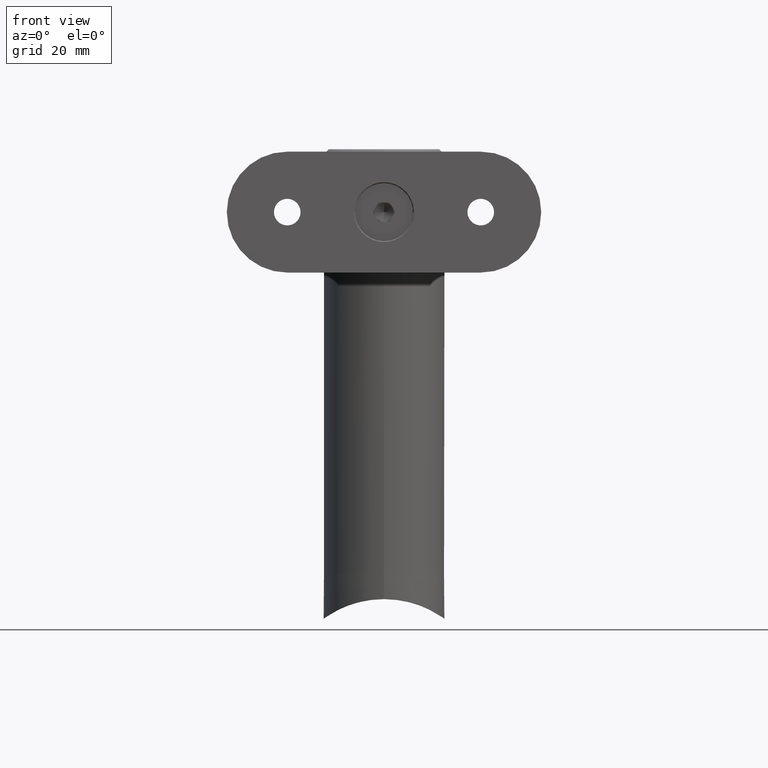
[diagram: clean part render]
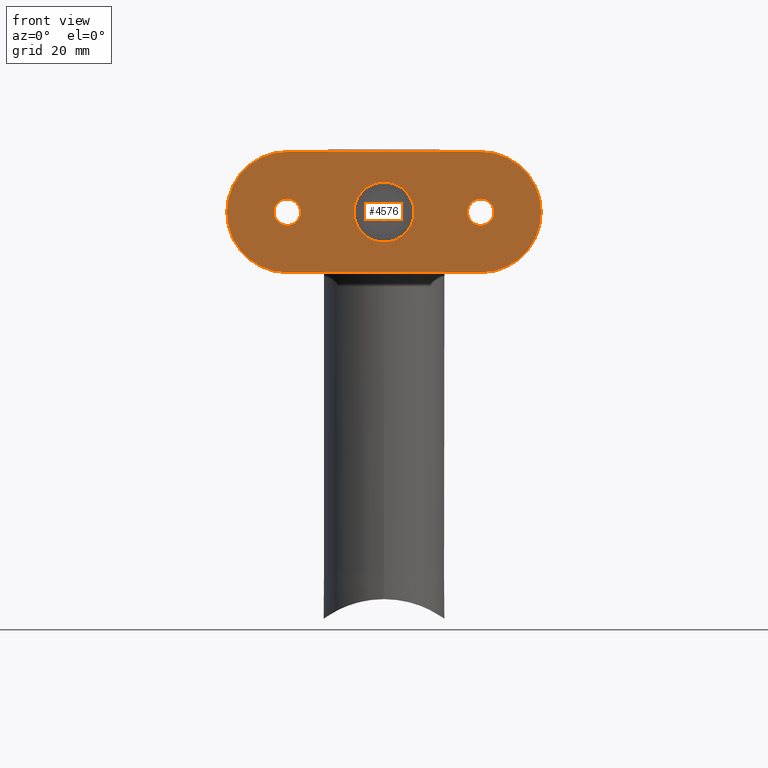
[diagram: same view with one face highlighted and labeled with its STEP entity id]
A machine part, front view. The second image highlights one B-rep face of the part: STEP entity #4576.
In plain terms, the highlighted planar face has unit normal (-0, 1, -0).
Its self-contained STEP definition (entity closure, byte-faithful):
#169 = AXIS2_PLACEMENT_3D ( 'NONE', #18612, #6557, #18413 ) ;
#317 = DIRECTION ( 'NONE',  ( 0.000000000000000000, 0.000000000000000000, -1.000000000000000000 ) ) ;
#678 = CIRCLE ( 'NONE', #3901, 6.200000000000001066 ) ;
#745 = VERTEX_POINT ( 'NONE', #4676 ) ;
#803 = ORIENTED_EDGE ( 'NONE', *, *, #7622, .T. ) ;
#1307 = AXIS2_PLACEMENT_3D ( 'NONE', #14807, #13407, #2798 ) ;
#1407 = VERTEX_POINT ( 'NONE', #6636 ) ;
#1437 = AXIS2_PLACEMENT_3D ( 'NONE', #17101, #6810, #9614 ) ;
#1584 = FACE_BOUND ( 'NONE', #5197, .T. ) ;
#1596 = EDGE_CURVE ( 'NONE', #11078, #15325, #5478, .T. ) ;
#1810 = AXIS2_PLACEMENT_3D ( 'NONE', #14672, #13338, #4557 ) ;
#2139 = CIRCLE ( 'NONE', #1437, 2.749999999999999112 ) ;
#2593 = DIRECTION ( 'NONE',  ( 8.881784197001252323E-16, 0.000000000000000000, -1.000000000000000000 ) ) ;
#2798 = DIRECTION ( 'NONE',  ( 0.000000000000000000, 0.000000000000000000, -1.000000000000000000 ) ) ;
#2825 = ORIENTED_EDGE ( 'NONE', *, *, #4448, .T. ) ;
#2843 = CIRCLE ( 'NONE', #18322, 12.50000000000000000 ) ;
#2977 = CARTESIAN_POINT ( 'NONE',  ( 0.000000000000000000, 2.000000000000001776, 20.00000000000000000 ) ) ;
#2991 = EDGE_LOOP ( 'NONE', ( #13830, #4227 ) ) ;
#3091 = CARTESIAN_POINT ( 'NONE',  ( 0.000000000000000000, 2.000000000000001776, 22.75000000000000000 ) ) ;
#3111 = DIRECTION ( 'NONE',  ( 0.000000000000000000, 1.000000000000000000, 0.000000000000000000 ) ) ;
#3631 = DIRECTION ( 'NONE',  ( 0.000000000000000000, 0.000000000000000000, -1.000000000000000000 ) ) ;
#3827 = CARTESIAN_POINT ( 'NONE',  ( 0.000000000000000000, 2.000000000000001776, -20.00000000000000000 ) ) ;
#3901 = AXIS2_PLACEMENT_3D ( 'NONE', #12414, #4743, #9178 ) ;
#4221 = VECTOR ( 'NONE', #3631, 1000.000000000000000 ) ;
#4227 = ORIENTED_EDGE ( 'NONE', *, *, #1596, .F. ) ;
#4448 = EDGE_CURVE ( 'NONE', #16509, #13860, #678, .T. ) ;
#4557 = DIRECTION ( 'NONE',  ( 0.000000000000000000, 0.000000000000000000, -1.000000000000000000 ) ) ;
#4576 = ADVANCED_FACE ( 'NONE', ( #1584, #12986, #9971, #9031 ), #12347, .F. ) ;
#4676 = CARTESIAN_POINT ( 'NONE',  ( -12.50000000000001066, 2.000000000000001776, 20.00000000000000000 ) ) ;
#4743 = DIRECTION ( 'NONE',  ( 0.000000000000000000, -1.000000000000000000, 0.000000000000000000 ) ) ;
#4854 = ORIENTED_EDGE ( 'NONE', *, *, #10584, .T. ) ;
#5197 = EDGE_LOOP ( 'NONE', ( #13186, #2825 ) ) ;
#5478 = CIRCLE ( 'NONE', #8725, 2.749999999999999112 ) ;
#5722 = ORIENTED_EDGE ( 'NONE', *, *, #8828, .T. ) ;
#5910 = ORIENTED_EDGE ( 'NONE', *, *, #16623, .F. ) ;
#6278 = LINE ( 'NONE', #10730, #15786 ) ;
#6538 = CIRCLE ( 'NONE', #1307, 12.49999999999999645 ) ;
#6557 = DIRECTION ( 'NONE',  ( 0.000000000000000000, -1.000000000000000000, 0.000000000000000000 ) ) ;
#6636 = CARTESIAN_POINT ( 'NONE',  ( 0.000000000000000000, 2.000000000000001776, 32.50000000000000000 ) ) ;
#6810 = DIRECTION ( 'NONE',  ( 0.000000000000000000, 1.000000000000000000, 0.000000000000000000 ) ) ;
#6821 = EDGE_CURVE ( 'NONE', #14973, #16633, #12825, .T. ) ;
#7021 = CARTESIAN_POINT ( 'NONE',  ( 0.000000000000000000, 2.000000000000001776, 20.00000000000000000 ) ) ;
#7167 = DIRECTION ( 'NONE',  ( 0.000000000000000000, 0.000000000000000000, -1.000000000000000000 ) ) ;
#7622 = EDGE_CURVE ( 'NONE', #745, #1407, #2843, .T. ) ;
#7864 = CARTESIAN_POINT ( 'NONE',  ( 0.000000000000000000, 2.000000000000001776, -17.25000000000000000 ) ) ;
#7873 = CARTESIAN_POINT ( 'NONE',  ( 0.000000000000000000, 2.000000000000001776, -6.200000000000001066 ) ) ;
#8366 = CIRCLE ( 'NONE', #17000, 2.749999999999999112 ) ;
#8376 = CIRCLE ( 'NONE', #8731, 2.749999999999999112 ) ;
#8725 = AXIS2_PLACEMENT_3D ( 'NONE', #2977, #14786, #9026 ) ;
#8731 = AXIS2_PLACEMENT_3D ( 'NONE', #16211, #3111, #11836 ) ;
#8767 = CARTESIAN_POINT ( 'NONE',  ( 0.000000000000000000, 2.000000000000001776, -32.50000000000000000 ) ) ;
#8828 = EDGE_CURVE ( 'NONE', #16633, #15838, #6538, .T. ) ;
#8939 = CARTESIAN_POINT ( 'NONE',  ( 0.000000000000000000, 2.000000000000001776, 0.000000000000000000 ) ) ;
#9026 = DIRECTION ( 'NONE',  ( 0.000000000000000000, 0.000000000000000000, 1.000000000000000000 ) ) ;
#9031 = FACE_OUTER_BOUND ( 'NONE', #13660, .T. ) ;
#9178 = DIRECTION ( 'NONE',  ( 0.000000000000000000, 0.000000000000000000, -1.000000000000000000 ) ) ;
#9552 = CIRCLE ( 'NONE', #1810, 12.50000000000000000 ) ;
#9614 = DIRECTION ( 'NONE',  ( 0.000000000000000000, 0.000000000000000000, 1.000000000000000000 ) ) ;
#9971 = FACE_BOUND ( 'NONE', #14783, .T. ) ;
#10120 = ORIENTED_EDGE ( 'NONE', *, *, #15919, .T. ) ;
#10171 = VERTEX_POINT ( 'NONE', #14445 ) ;
#10233 = DIRECTION ( 'NONE',  ( 0.000000000000000000, -1.000000000000000000, 0.000000000000000000 ) ) ;
#10584 = EDGE_CURVE ( 'NONE', #15838, #10738, #14386, .T. ) ;
#10730 = CARTESIAN_POINT ( 'NONE',  ( -12.50000000000001066, 2.000000000000001776, 32.50000000000005684 ) ) ;
#10738 = VERTEX_POINT ( 'NONE', #14809 ) ;
#10933 = EDGE_CURVE ( 'NONE', #17726, #10171, #8366, .T. ) ;
#11078 = VERTEX_POINT ( 'NONE', #15283 ) ;
#11409 = EDGE_CURVE ( 'NONE', #13860, #16509, #16924, .T. ) ;
#11538 = DIRECTION ( 'NONE',  ( -0.000000000000000000, 1.000000000000000000, -0.000000000000000000 ) ) ;
#11836 = DIRECTION ( 'NONE',  ( 0.000000000000000000, 0.000000000000000000, 1.000000000000000000 ) ) ;
#11901 = CARTESIAN_POINT ( 'NONE',  ( 12.49999999999999645, 2.000000000000001776, -20.00000000000000355 ) ) ;
#12345 = CARTESIAN_POINT ( 'NONE',  ( 12.49999999999999645, 2.000000000000001776, 20.00000000000000000 ) ) ;
#12347 = PLANE ( 'NONE',  #169 ) ;
#12414 = CARTESIAN_POINT ( 'NONE',  ( 0.000000000000000000, 2.000000000000001776, 0.000000000000000000 ) ) ;
#12610 = CARTESIAN_POINT ( 'NONE',  ( 12.49999999999999645, 2.000000000000001776, 32.50000000000000000 ) ) ;
#12825 = LINE ( 'NONE', #12610, #4221 ) ;
#12986 = FACE_BOUND ( 'NONE', #2991, .T. ) ;
#13186 = ORIENTED_EDGE ( 'NONE', *, *, #11409, .T. ) ;
#13338 = DIRECTION ( 'NONE',  ( -0.000000000000000000, 1.000000000000000000, -0.000000000000000000 ) ) ;
#13407 = DIRECTION ( 'NONE',  ( -0.000000000000000000, 1.000000000000000000, -0.000000000000000000 ) ) ;
#13660 = EDGE_LOOP ( 'NONE', ( #18728, #5722, #4854, #16804, #803, #10120 ) ) ;
#13830 = ORIENTED_EDGE ( 'NONE', *, *, #15016, .F. ) ;
#13860 = VERTEX_POINT ( 'NONE', #7873 ) ;
#14210 = DIRECTION ( 'NONE',  ( 0.000000000000000000, 0.000000000000000000, 1.000000000000000000 ) ) ;
#14386 = CIRCLE ( 'NONE', #18633, 12.49999999999999645 ) ;
#14445 = CARTESIAN_POINT ( 'NONE',  ( 3.367778697655220026E-16, 2.000000000000001776, -22.75000000000000000 ) ) ;
#14621 = DIRECTION ( 'NONE',  ( 0.000000000000000000, 0.000000000000000000, -1.000000000000000000 ) ) ;
#14672 = CARTESIAN_POINT ( 'NONE',  ( 0.000000000000000000, 2.000000000000001776, 20.00000000000000000 ) ) ;
#14783 = EDGE_LOOP ( 'NONE', ( #17018, #5910 ) ) ;
#14786 = DIRECTION ( 'NONE',  ( 0.000000000000000000, 1.000000000000000000, 0.000000000000000000 ) ) ;
#14807 = CARTESIAN_POINT ( 'NONE',  ( 0.000000000000000000, 2.000000000000001776, -20.00000000000000355 ) ) ;
#14809 = CARTESIAN_POINT ( 'NONE',  ( -12.50000000000001066, 2.000000000000001776, -20.00000000000000355 ) ) ;
#14973 = VERTEX_POINT ( 'NONE', #12345 ) ;
#15016 = EDGE_CURVE ( 'NONE', #15325, #11078, #2139, .T. ) ;
#15283 = CARTESIAN_POINT ( 'NONE',  ( 3.367778697655220026E-16, 2.000000000000001776, 17.25000000000000000 ) ) ;
#15325 = VERTEX_POINT ( 'NONE', #3091 ) ;
#15786 = VECTOR ( 'NONE', #317, 1000.000000000000000 ) ;
#15838 = VERTEX_POINT ( 'NONE', #8767 ) ;
#15919 = EDGE_CURVE ( 'NONE', #1407, #14973, #9552, .T. ) ;
#16090 = DIRECTION ( 'NONE',  ( -0.000000000000000000, 1.000000000000000000, -0.000000000000000000 ) ) ;
#16211 = CARTESIAN_POINT ( 'NONE',  ( 0.000000000000000000, 2.000000000000001776, -20.00000000000000000 ) ) ;
#16509 = VERTEX_POINT ( 'NONE', #17506 ) ;
#16623 = EDGE_CURVE ( 'NONE', #10171, #17726, #8376, .T. ) ;
#16633 = VERTEX_POINT ( 'NONE', #11901 ) ;
#16649 = EDGE_CURVE ( 'NONE', #745, #10738, #6278, .T. ) ;
#16804 = ORIENTED_EDGE ( 'NONE', *, *, #16649, .F. ) ;
#16924 = CIRCLE ( 'NONE', #17064, 6.200000000000001066 ) ;
#17000 = AXIS2_PLACEMENT_3D ( 'NONE', #3827, #17427, #14210 ) ;
#17018 = ORIENTED_EDGE ( 'NONE', *, *, #10933, .F. ) ;
#17064 = AXIS2_PLACEMENT_3D ( 'NONE', #8939, #10233, #14621 ) ;
#17101 = CARTESIAN_POINT ( 'NONE',  ( 0.000000000000000000, 2.000000000000001776, 20.00000000000000000 ) ) ;
#17427 = DIRECTION ( 'NONE',  ( 0.000000000000000000, 1.000000000000000000, 0.000000000000000000 ) ) ;
#17506 = CARTESIAN_POINT ( 'NONE',  ( 7.592810154713590821E-16, 2.000000000000001776, 6.200000000000001066 ) ) ;
#17523 = CARTESIAN_POINT ( 'NONE',  ( 0.000000000000000000, 2.000000000000001776, -20.00000000000000355 ) ) ;
#17726 = VERTEX_POINT ( 'NONE', #7864 ) ;
#18322 = AXIS2_PLACEMENT_3D ( 'NONE', #7021, #16090, #2593 ) ;
#18413 = DIRECTION ( 'NONE',  ( 0.000000000000000000, 0.000000000000000000, -1.000000000000000000 ) ) ;
#18612 = CARTESIAN_POINT ( 'NONE',  ( -12.50000000000001066, 2.000000000000001776, 32.50000000000005684 ) ) ;
#18633 = AXIS2_PLACEMENT_3D ( 'NONE', #17523, #11538, #7167 ) ;
#18728 = ORIENTED_EDGE ( 'NONE', *, *, #6821, .T. ) ;